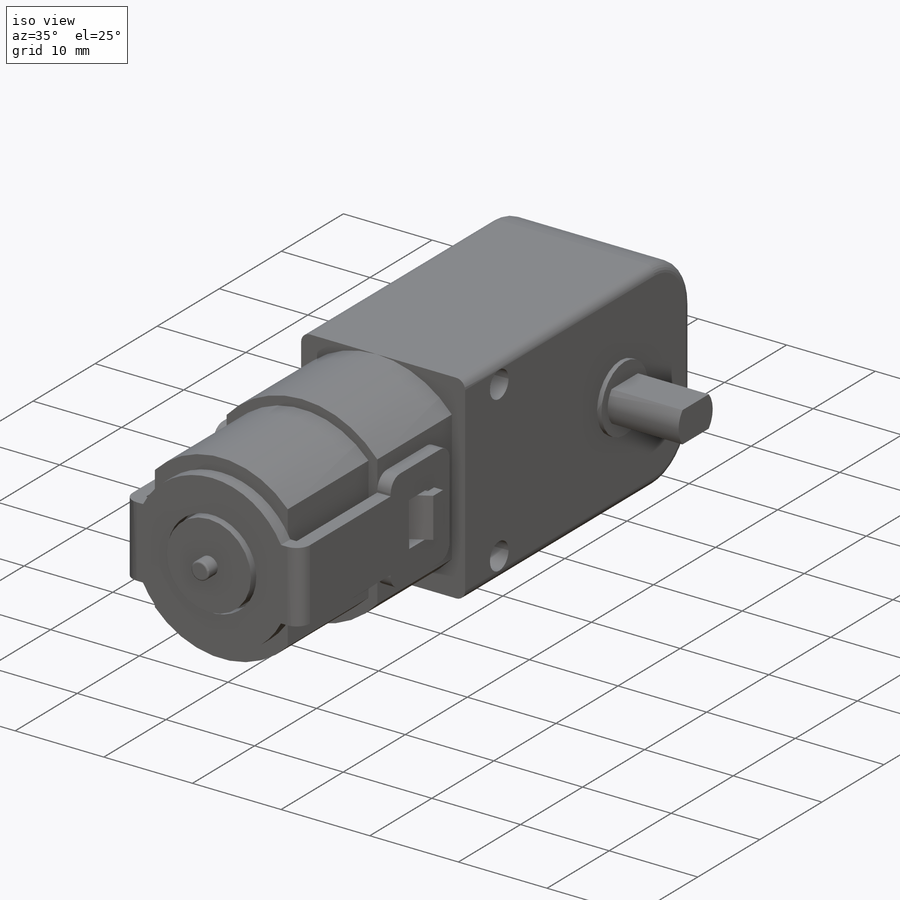
[diagram: iso view]
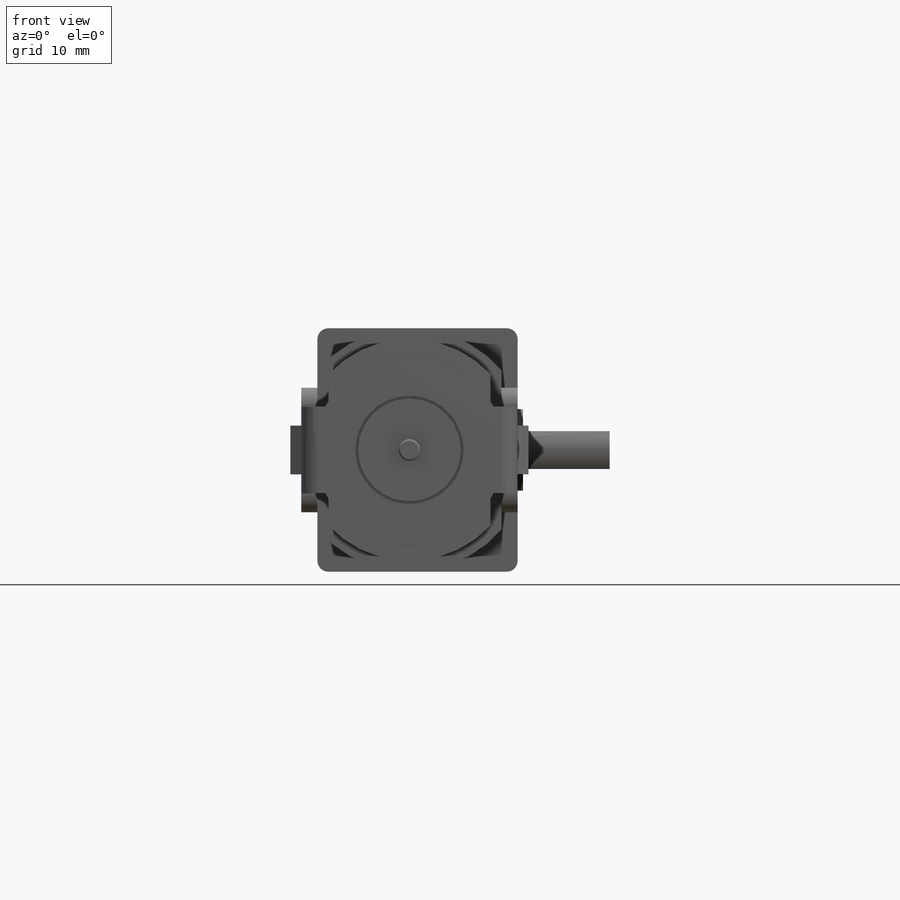
[diagram: front view]
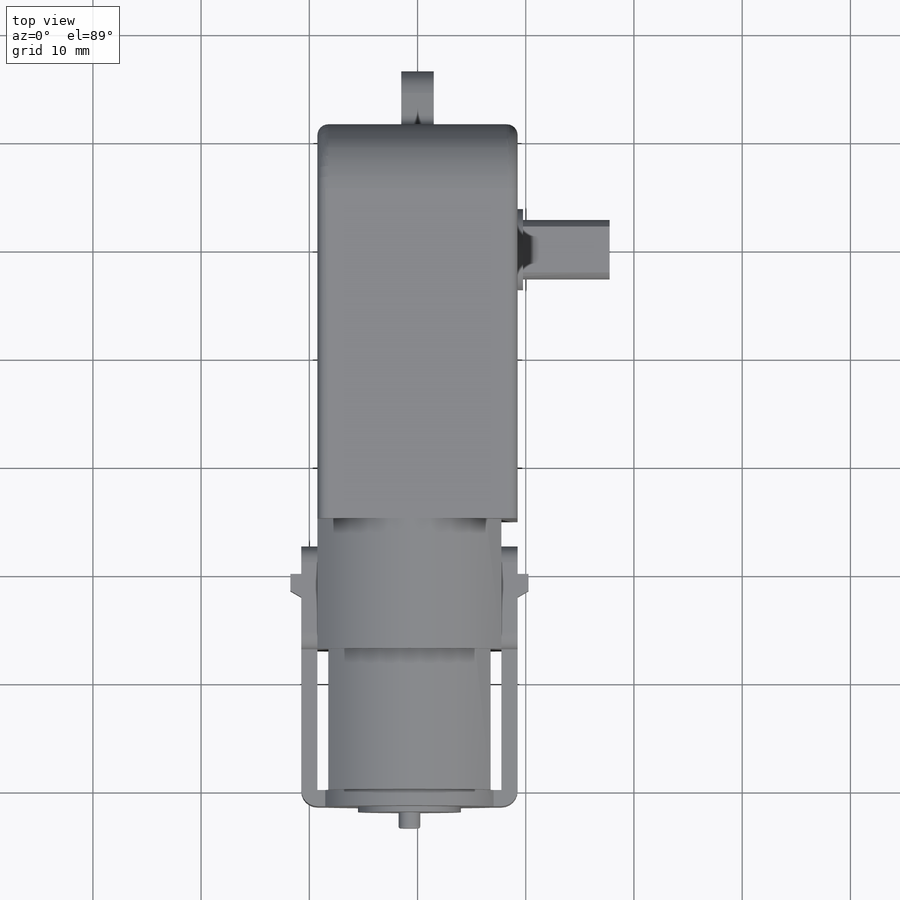
[diagram: top view]
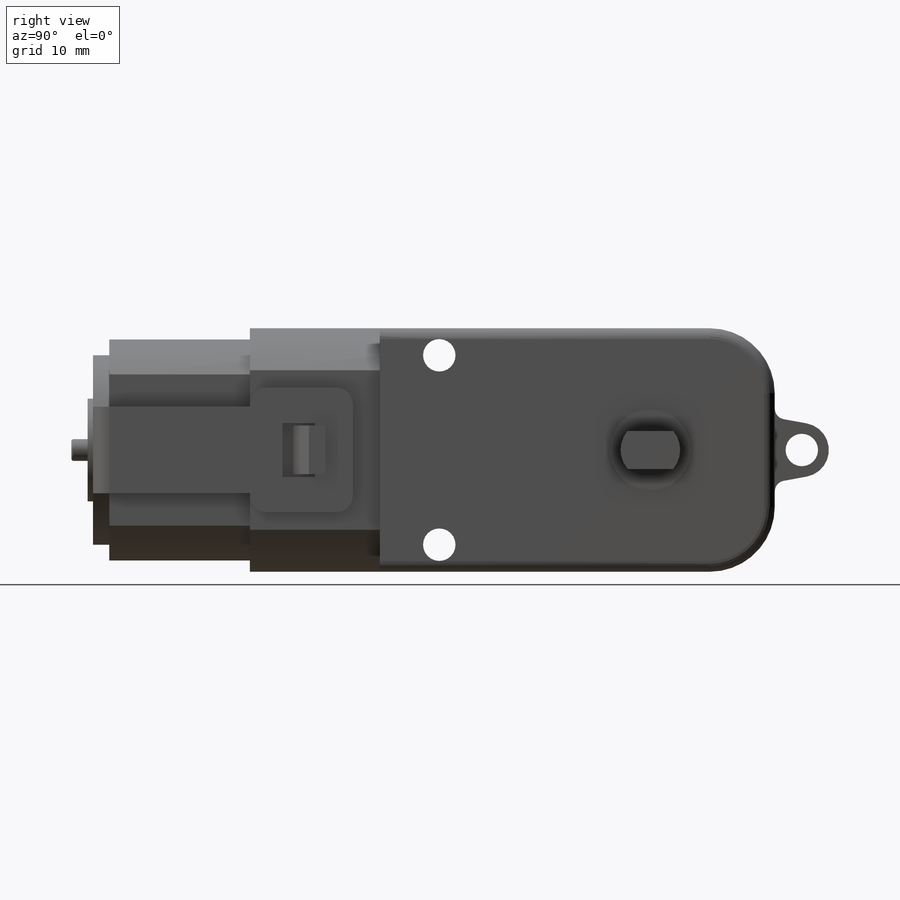
[diagram: right view]
SOLIDWORKS PART (.sldprt)
format: sldprt  version: not decoded by parser v0  size: 545,280 bytes
history: native  units: mm
features: sketch x16, extrude x14, fillet x5, plane x4, cut_extrude x2, material x1, mirror x1 (+12 scaffold rows collapsed)
feature tree (55):
  scaffold x12  (default folders/planes/origin — collapsed)
  material  "Material <não especificado>"
  plane  "Plano frontal"
  plane  "Plano superior"
  plane  "Plano direito"
  sketch  "Esboço1"  dims[D1=22.5mm D2=11.5mm D3=36.5mm]
  extrude  "Ressalto-extrusão1"  Depth=18.5mm
  fillet  "Filete1"  Radius=6mm
  sketch  "Esboço2"  dims[D1=1.5mm]
  extrude  "Ressalto-extrusão2"  Depth=12mm
  sketch  "Esboço3"  dims[D1=0.0mm D2=1.0mm]
  extrude  "Ressalto-extrusão3"  Depth=13mm
  sketch  "Esboço4"  dims[D1=7.5mm]
  extrude  "Ressalto-extrusão4"  Depth=0.5mm
  sketch  "Esboço5"  dims[D1=2.5mm D2=11.5mm]
  extrude  "Ressalto-extrusão5"  Depth=1.5mm
  sketch  "Esboço6"  dims[D1=8.0mm]
  extrude  "Ressalto-extrusão6"  [1 undecoded]
  sketch  "Esboço7"  dims[D1=17.5mm D2=10.0mm]
  sketch  "Esboço8"  dims[D1=9.5mm]
  extrude  "Ressalto-extrusão7"  Depth=2mm
  extrude  "Ressalto-extrusão8"  Depth=1.5mm
  plane  "Plano1"
  sketch  "Esboço10"
  extrude  "Ressalto-extrusão9"  [1 undecoded]
  sketch  "Esboço11"
  extrude  "Ressalto-extrusão10"  [1 undecoded]
  fillet  "Filete2"  Radius=1.5mm
  sketch  "Esboço12"  dims[D1=6.0mm D2=3.0mm D3=5.0mm]
  cut_extrude  "Corte-extrusão1"  [1 undecoded]
  sketch  "Esboço14"  dims[c1.D1=2.5mm c1.D2=1.0mm c1.D3=~1.81459mm c2.D3=60.0deg c2.D4=2.0mm]
  extrude  "Ressalto-extrusão11"  Depth=4.5mm
  mirror  "Espelhar6"
  sketch  "Esboço15"  dims[D1=2.0mm]
  extrude  "Ressalto-extrusão12"  Depth=1.5mm
  sketch  "Esboço16"  dims[D1=5.5mm D2=3.5mm]
  extrude  "Ressalto-extrusão13"  Depth=8mm
  fillet  "Filete4"  Radius=1mm
  sketch  "Esboço17"  dims[c1.D2=3.0mm c1.D3=3.0mm c1.D1=17.5mm c2.D3=4.0mm]
  cut_extrude  "Corte-extrusão2"  [1 undecoded]
  sketch  "Esboço19"  dims[c1.D2=~2.222173mm c1.D3=3.0mm c1.D4=~2.283197mm c1.D1=6.0mm c2.D2=5.0mm c2.D4=2.5mm]
  extrude  "Ressalto-extrusão14"  Depth=3mm
  fillet  "Filete5"  Radius=1mm
  fillet  "Filete6"  Radius=0.2mm
decode coverage: 30 of 38 modeling features carry decoded parameters
note: ~ marks probable driven/reference dimensions
note: 5 parameter values undecoded
summary: no parameter record found for 5 features
note: suppression state not decoded; provenance and decode notes live in map.json
